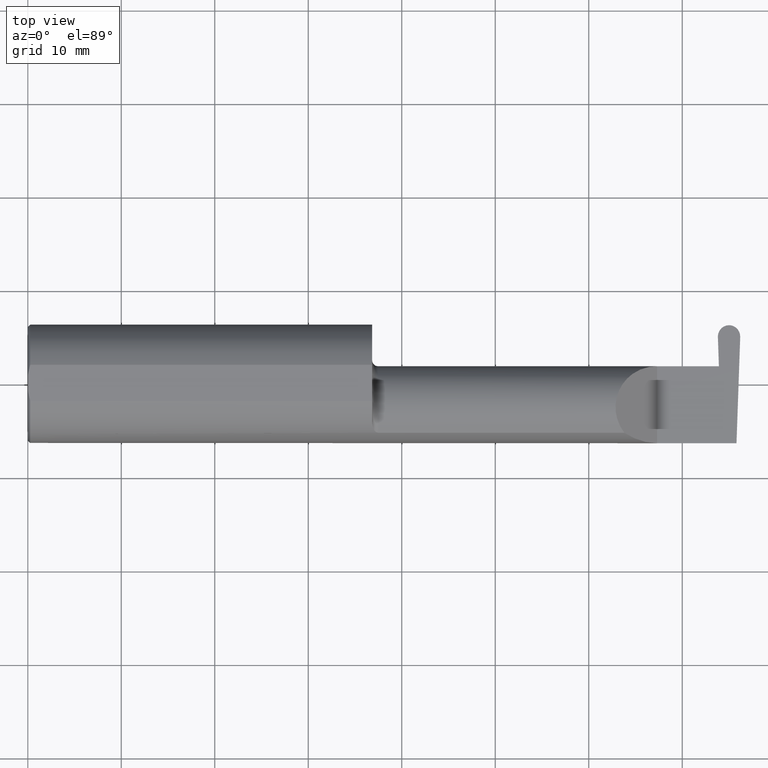
[diagram: clean part render]
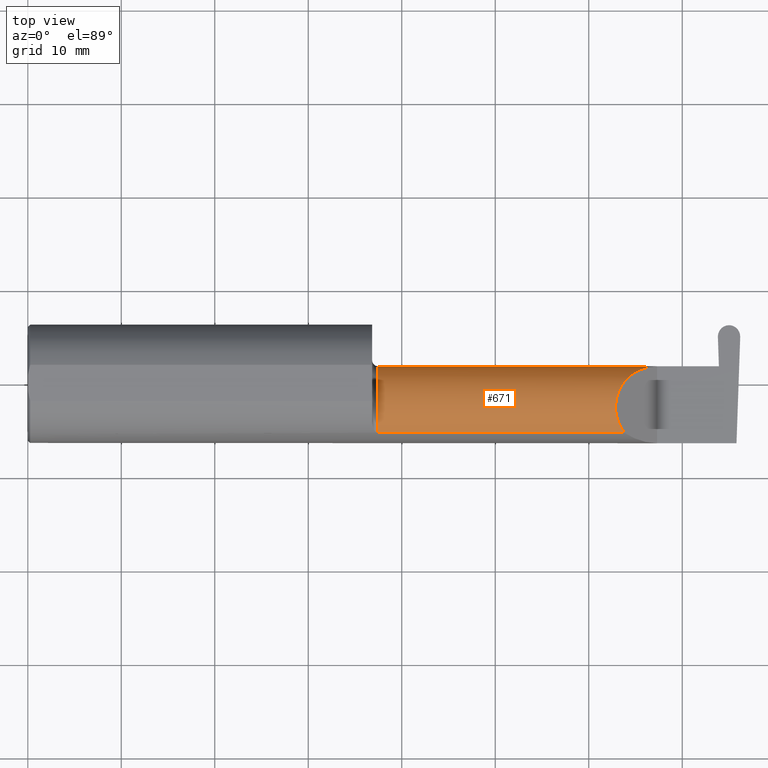
[diagram: same view with one face highlighted and labeled with its STEP entity id]
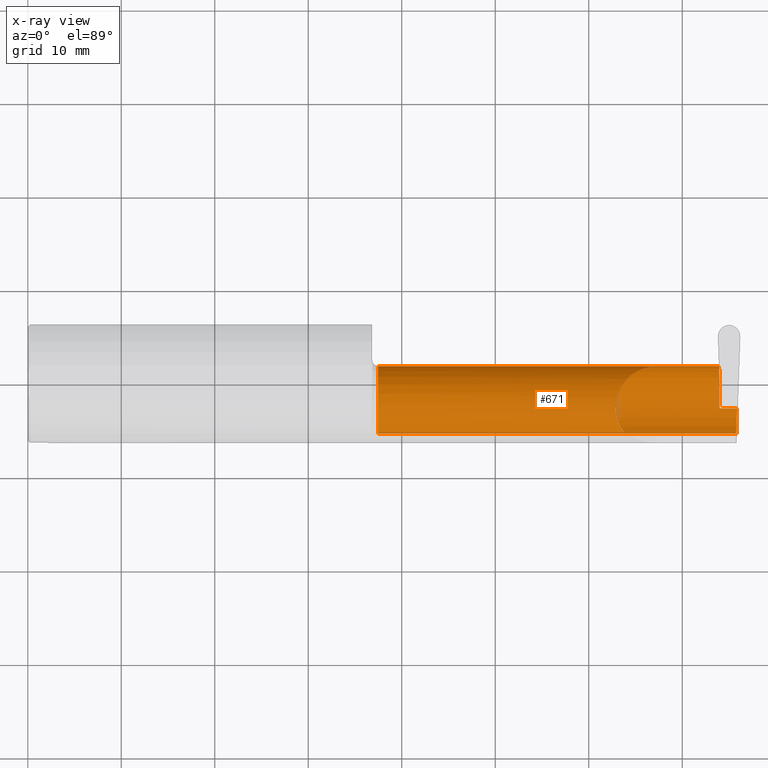
[diagram: x-ray of the same camera — body ghosted, the highlighted face saturated]
A machine part, top view. The second image highlights one B-rep face of the part: STEP entity #671.
The next image is the same camera in x-ray: the body ghosted, the highlighted face saturated — about 1% of this face is hidden behind the body in this view.
In plain terms, the highlighted cylindrical surface (partial cylindrical patch) has radius 4.445 mm, axis along (-1, 0, -0).
Its self-contained STEP definition (entity closure, byte-faithful):
#18 = CARTESIAN_POINT ( 'NONE',  ( 2.511704467739031887, -0.2080850024789287211, 0.1382955322609671911 ) ) ;
#19 = EDGE_CURVE ( 'NONE', #702, #384, #195, .T. ) ;
#65 = EDGE_CURVE ( 'NONE', #97, #674, #474, .T. ) ;
#74 = CARTESIAN_POINT ( 'NONE',  ( 2.650000000000000355, 0.07414999999999995206, 1.898202538678394994E-16 ) ) ;
#84 = CARTESIAN_POINT ( 'NONE',  ( 1.474999999999999867, -0.1008500000000001201, 0.000000000000000000 ) ) ;
#88 = DIRECTION ( 'NONE',  ( 0.000000000000000000, -1.000000000000000000, 0.000000000000000000 ) ) ;
#97 = VERTEX_POINT ( 'NONE', #106 ) ;
#102 = ORIENTED_EDGE ( 'NONE', *, *, #138, .F. ) ;
#103 = VECTOR ( 'NONE', #471, 39.37007874015748143 ) ;
#106 = CARTESIAN_POINT ( 'NONE',  ( 2.983360130692194634, -0.2080850024789288044, -0.1382955322609671633 ) ) ;
#114 = CARTESIAN_POINT ( 'NONE',  ( 2.190421435000000194, -0.2080850024789288044, -0.1382955322609671633 ) ) ;
#115 = VERTEX_POINT ( 'NONE', #324 ) ;
#120 = CARTESIAN_POINT ( 'NONE',  ( 2.913397403057193191, -0.001152430219566414173, -0.1750000000000001832 ) ) ;
#132 = VECTOR ( 'NONE', #405, 39.37007874015748143 ) ;
#138 = EDGE_CURVE ( 'NONE', #359, #268, #491, .T. ) ;
#139 = VECTOR ( 'NONE', #163, 39.37007874015748143 ) ;
#143 = CARTESIAN_POINT ( 'NONE',  ( 2.983360130692194634, -0.2080850024789288044, -0.1382955322609671633 ) ) ;
#146 = ORIENTED_EDGE ( 'NONE', *, *, #19, .F. ) ;
#154 = CARTESIAN_POINT ( 'NONE',  ( 2.986463790105515770, -0.1008500000000001617, -0.1750000000000000722 ) ) ;
#163 = DIRECTION ( 'NONE',  ( 1.000000000000000000, -1.172794833305166028E-17, 0.000000000000000000 ) ) ;
#169 = ORIENTED_EDGE ( 'NONE', *, *, #65, .F. ) ;
#180 = LINE ( 'NONE', #344, #132 ) ;
#192 = CARTESIAN_POINT ( 'NONE',  ( 2.899099083631634599, 0.07407892981889442618, -0.004071607948626658653 ) ) ;
#195 = CIRCLE ( 'NONE', #552, 0.1750000000000000444 ) ;
#197 = EDGE_CURVE ( 'NONE', #97, #384, #589, .T. ) ;
#227 = DIRECTION ( 'NONE',  ( -1.000000000000000000, 1.172794833305166028E-17, -0.000000000000000000 ) ) ;
#234 = ORIENTED_EDGE ( 'NONE', *, *, #473, .F. ) ;
#248 = ORIENTED_EDGE ( 'NONE', *, *, #695, .F. ) ;
#251 = CARTESIAN_POINT ( 'NONE',  ( 2.984022185481226774, -0.1771157075472507281, -0.1623092683844333528 ) ) ;
#267 = EDGE_CURVE ( 'NONE', #455, #115, #565, .T. ) ;
#268 = VERTEX_POINT ( 'NONE', #346 ) ;
#275 = CARTESIAN_POINT ( 'NONE',  ( 1.474999999999999867, -0.2080850024789288877, -0.1382955322609669691 ) ) ;
#308 = CARTESIAN_POINT ( 'NONE',  ( 2.899170153812740125, 0.07414999999999995206, 0.000000000000000000 ) ) ;
#310 = CARTESIAN_POINT ( 'NONE',  ( 2.899134618722187362, 0.07411446490944718912, -0.002035803974313329327 ) ) ;
#324 = CARTESIAN_POINT ( 'NONE',  ( 2.650000000000000355, 0.07414999999999995206, 1.898202538678394994E-16 ) ) ;
#340 = ORIENTED_EDGE ( 'NONE', *, *, #197, .T. ) ;
#344 = CARTESIAN_POINT ( 'NONE',  ( 2.190421435000000194, -0.2080850024789288044, 0.1382955322609671633 ) ) ;
#346 = CARTESIAN_POINT ( 'NONE',  ( 2.899063548541081836, 0.07404339472834166325, -0.006107411922939997087 ) ) ;
#348 = VERTEX_POINT ( 'NONE', #554 ) ;
#354 = CARTESIAN_POINT ( 'NONE',  ( 2.511704467739031887, -0.2080850024789287211, 0.1382955322609671911 ) ) ;
#359 = VERTEX_POINT ( 'NONE', #708 ) ;
#364 = EDGE_CURVE ( 'NONE', #115, #670, #440, .T. ) ;
#368 = CARTESIAN_POINT ( 'NONE',  ( 3.402190948718818220, -0.1008500000000001617, -0.1750000000000000722 ) ) ;
#372 = VECTOR ( 'NONE', #534, 39.37007874015748143 ) ;
#384 = VERTEX_POINT ( 'NONE', #275 ) ;
#405 = DIRECTION ( 'NONE',  ( 1.000000000000000000, -1.172794833305166028E-17, 0.000000000000000000 ) ) ;
#409 = DIRECTION ( 'NONE',  ( -1.000000000000000000, 1.172794833305166028E-17, -0.000000000000000000 ) ) ;
#420 = CARTESIAN_POINT ( 'NONE',  ( 2.899063548541081836, 0.07404339472834166325, -0.006107411922939997087 ) ) ;
#423 = DIRECTION ( 'NONE',  ( -1.000000000000000000, 1.172794833305166028E-17, -0.000000000000000000 ) ) ;
#440 = LINE ( 'NONE', #446, #139 ) ;
#446 = CARTESIAN_POINT ( 'NONE',  ( 1.450000000000000178, 0.07414999999999996594, 1.898202538678394994E-16 ) ) ;
#455 = VERTEX_POINT ( 'NONE', #18 ) ;
#471 = DIRECTION ( 'NONE',  ( -1.000000000000000000, -0.000000000000000000, -0.000000000000000000 ) ) ;
#473 = EDGE_CURVE ( 'NONE', #348, #359, #582, .T. ) ;
#474 =( BOUNDED_CURVE ( )  B_SPLINE_CURVE ( 3, ( #143, #251, #697, #154 ),
 .UNSPECIFIED., .F., .T. ) 
 B_SPLINE_CURVE_WITH_KNOTS ( ( 4, 4 ),
 ( 0.4474640105399505519, 1.107026853503853880 ),
 .UNSPECIFIED. ) 
 CURVE ( )  GEOMETRIC_REPRESENTATION_ITEM ( )  RATIONAL_B_SPLINE_CURVE ( ( 1.000000000000000000, 0.9640754331822833922, 0.9640754331822833922, 1.000000000000000000 ) ) 
 REPRESENTATION_ITEM ( '' )  );
#477 = LINE ( 'NONE', #368, #103 ) ;
#491 = LINE ( 'NONE', #540, #521 ) ;
#492 = EDGE_LOOP ( 'NONE', ( #340, #146, #504, #710, #707, #248, #102, #234, #660, #169 ) ) ;
#504 = ORIENTED_EDGE ( 'NONE', *, *, #587, .T. ) ;
#512 = CARTESIAN_POINT ( 'NONE',  ( 2.482823929317965028, 0.07414999999999996594, 0.1671760706820336062 ) ) ;
#517 = CARTESIAN_POINT ( 'NONE',  ( 2.912123349427337082, 0.07056399972054018532, -0.1057442486376025392 ) ) ;
#520 = CARTESIAN_POINT ( 'NONE',  ( 1.474999999999999867, -0.2080850024789288877, 0.1382955322609669691 ) ) ;
#521 = VECTOR ( 'NONE', #227, 39.37007874015748143 ) ;
#528 = CARTESIAN_POINT ( 'NONE',  ( 2.986463790105515770, -0.1008500000000001617, -0.1750000000000000722 ) ) ;
#530 = DIRECTION ( 'NONE',  ( 0.000000000000000000, -1.000000000000000000, 0.000000000000000000 ) ) ;
#534 = DIRECTION ( 'NONE',  ( -1.000000000000000000, 1.172794833305166028E-17, -0.000000000000000000 ) ) ;
#540 = CARTESIAN_POINT ( 'NONE',  ( 1.450000000000000178, 0.07404339472834164937, -0.006107411922940873122 ) ) ;
#552 = AXIS2_PLACEMENT_3D ( 'NONE', #84, #409, #88 ) ;
#554 = CARTESIAN_POINT ( 'NONE',  ( 2.913428848522521708, -0.1008500000000001479, -0.1750000000000001277 ) ) ;
#565 =( BOUNDED_CURVE ( )  B_SPLINE_CURVE ( 3, ( #354, #676, #512, #74 ),
 .UNSPECIFIED., .F., .T. ) 
 B_SPLINE_CURVE_WITH_KNOTS ( ( 4, 4 ),
 ( 5.623622464215683792, 7.853981633974482790 ),
 .UNSPECIFIED. ) 
 CURVE ( )  GEOMETRIC_REPRESENTATION_ITEM ( )  RATIONAL_B_SPLINE_CURVE ( ( 1.000000000000000000, 0.6266774836124003878, 0.6266774836124003878, 1.000000000000000000 ) ) 
 REPRESENTATION_ITEM ( '' )  );
#572 = CARTESIAN_POINT ( 'NONE',  ( 2.899170153812740125, 0.07414999999999995206, 0.000000000000000000 ) ) ;
#582 =( BOUNDED_CURVE ( )  B_SPLINE_CURVE ( 3, ( #623, #120, #517, #619 ),
 .UNSPECIFIED., .F., .T. ) 
 B_SPLINE_CURVE_WITH_KNOTS ( ( 4, 4 ),
 ( 3.159045946109737102, 4.694935687864728813 ),
 .UNSPECIFIED. ) 
 CURVE ( )  GEOMETRIC_REPRESENTATION_ITEM ( )  RATIONAL_B_SPLINE_CURVE ( ( 1.000000000000000000, 0.8128932002257716061, 0.8128932002257716061, 1.000000000000000000 ) ) 
 REPRESENTATION_ITEM ( '' )  );
#587 = EDGE_CURVE ( 'NONE', #702, #455, #180, .T. ) ;
#589 = LINE ( 'NONE', #114, #372 ) ;
#597 = AXIS2_PLACEMENT_3D ( 'NONE', #639, #423, #530 ) ;
#619 = CARTESIAN_POINT ( 'NONE',  ( 2.910321839925223752, 0.07404339472834164937, -0.006107411922940873990 ) ) ;
#622 = B_SPLINE_CURVE_WITH_KNOTS ( 'NONE', 3,
 ( #420, #192, #310, #572 ),
 .UNSPECIFIED., .F., .F.,
 ( 4, 4 ),
 ( 0.000000000000000000, 1.000000000000000000 ),
 .UNSPECIFIED. ) ;
#623 = CARTESIAN_POINT ( 'NONE',  ( 2.913428848522521708, -0.1008500000000001479, -0.1750000000000001277 ) ) ;
#636 = FACE_OUTER_BOUND ( 'NONE', #492, .T. ) ;
#639 = CARTESIAN_POINT ( 'NONE',  ( 1.450000000000000178, -0.1008500000000001201, 0.000000000000000000 ) ) ;
#660 = ORIENTED_EDGE ( 'NONE', *, *, #698, .F. ) ;
#670 = VERTEX_POINT ( 'NONE', #308 ) ;
#671 = ADVANCED_FACE ( 'NONE', ( #636 ), #693, .T. ) ;
#674 = VERTEX_POINT ( 'NONE', #528 ) ;
#676 = CARTESIAN_POINT ( 'NONE',  ( 2.409263745716142768, -0.07597241004310649470, 0.2407362542838552555 ) ) ;
#693 = CYLINDRICAL_SURFACE ( 'NONE', #597, 0.1750000000000001277 ) ;
#695 = EDGE_CURVE ( 'NONE', #268, #670, #622, .T. ) ;
#697 = CARTESIAN_POINT ( 'NONE',  ( 2.985095289412896147, -0.1400387324517230470, -0.1750000000000001832 ) ) ;
#698 = EDGE_CURVE ( 'NONE', #674, #348, #477, .T. ) ;
#702 = VERTEX_POINT ( 'NONE', #520 ) ;
#707 = ORIENTED_EDGE ( 'NONE', *, *, #364, .T. ) ;
#708 = CARTESIAN_POINT ( 'NONE',  ( 2.910321839925223752, 0.07404339472834164937, -0.006107411922940873990 ) ) ;
#710 = ORIENTED_EDGE ( 'NONE', *, *, #267, .T. ) ;